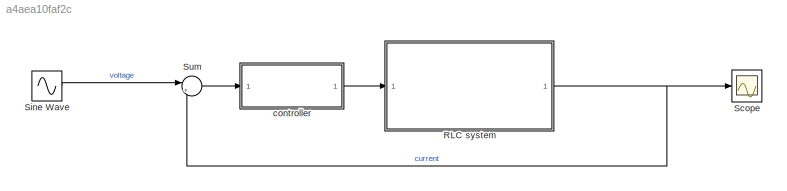
MODEL slx_a4aea10faf2c
KIND model
CONFIG AbsTol = auto
CONFIG EnableMultiTasking = off
CONFIG FixedStep = auto
CONFIG MaxStep = 1e-3
CONFIG MinStep = auto
CONFIG RelTol = 1e-3
CONFIG SampleTimeConstraint = Unconstrained
CONFIG SolverName = VariableStepAuto
CONFIG StartTime = 0.0
CONFIG StopTime = 10.0
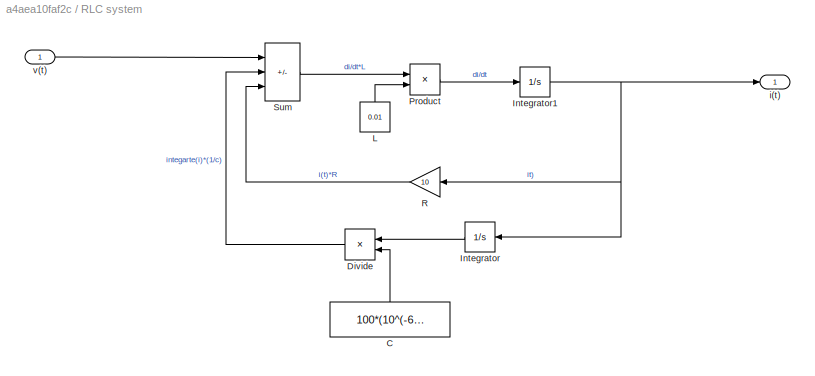
BLOCK [SubSystem] RLC system
BLOCK [Constant] RLC system/C
  NameLocation = right
  Value = 100*(10^(-6))
BLOCK [Product] RLC system/Divide
  Inputs = */
  NameLocation = top
BLOCK [Integrator] RLC system/Integrator
  NameLocation = top
BLOCK [Integrator] RLC system/Integrator1
BLOCK [Constant] RLC system/L
  NameLocation = right
  Value = 0.01
BLOCK [Product] RLC system/Product
BLOCK [Gain] RLC system/R
  Gain = 10
  NameLocation = top
BLOCK [Sum] RLC system/Sum
  IconShape = rectangular
  Inputs = |+|-|-
BLOCK [Outport] RLC system/i(t)
BLOCK [Inport] RLC system/v(t)
BLOCK [Scope] Scope
  Floating = off
  NumInputPorts = 1
  ScopeSpecificationString = Simulink.scopes.TimeScopeBlockCfg('CurrentConfiguration', extmgr.ConfigurationSet(extmgr.Configuration('Core','General UI',true),extmgr.Configuration('Core','Source UI',true),extmgr.Configuration('Sources','WiredSimulink',true),extmgr.Configuration('Visuals','Time Domain',true,'SerializedDisplays',{struct('MinYLimReal','-0.000012','MaxYLimReal','0.000012','YLabelReal','','MinYLimMag','0.000000','M...<+1499ch>
BLOCK [Sin] Sine Wave
  Frequency = 2000
  SampleTime = 0
BLOCK [Sum] Sum
  Inputs = |+-
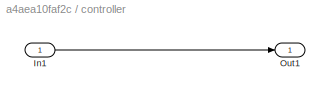
BLOCK [SubSystem] controller
BLOCK [Inport] controller/In1
BLOCK [Outport] controller/Out1
LINE RLC system/C:1 -> RLC system/Divide:2
LINE RLC system/Divide:1 -> RLC system/Sum:2
NET RLC system/Integrator1:1 -> RLC system/Integrator:1, RLC system/R:1, RLC system/i(t):1
LINE RLC system/Integrator:1 -> RLC system/Divide:1
LINE RLC system/L:1 -> RLC system/Product:2
LINE RLC system/Product:1 -> RLC system/Integrator1:1
LINE RLC system/R:1 -> RLC system/Sum:3
LINE RLC system/Sum:1 -> RLC system/Product:1
LINE RLC system/v(t):1 -> RLC system/Sum:1
NET RLC system:1 -> Scope:1, Sum:2
LINE Sine Wave:1 -> Sum:1
LINE Sum:1 -> controller:1
LINE controller/In1:1 -> controller/Out1:1
LINE controller:1 -> RLC system:1
note: NET lines group one-source signal fan-out (src -> all destinations, sorted); 1:1 wires keep LINE
